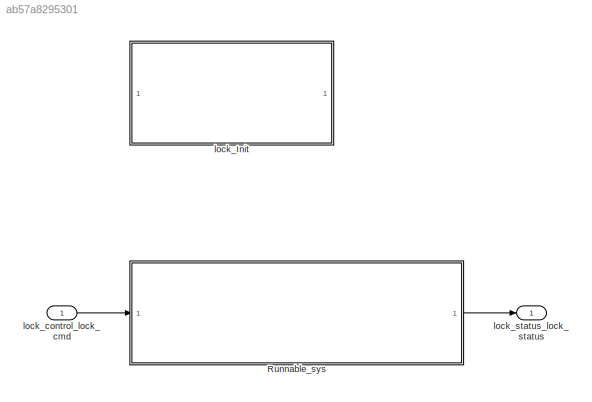
MODEL slx_ab57a8295301
KIND model
CONFIG AbsTol = auto
CONFIG EnableMultiTasking = off
CONFIG FixedStep = 0.02
CONFIG MaxStep = auto
CONFIG MinStep = auto
CONFIG RelTol = 1e-3
CONFIG SampleTimeConstraint = Unconstrained
CONFIG SolverName = FixedStepDiscrete
CONFIG StartTime = 0.0
CONFIG StopTime = 10.0
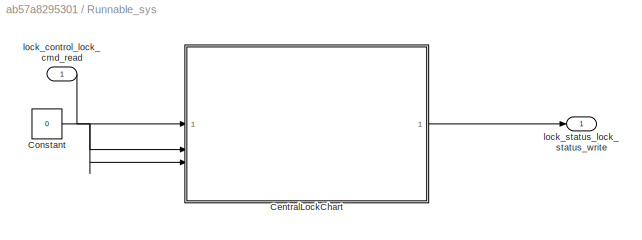
BLOCK [SubSystem] Runnable_sys
  SystemSampleTime = 0.02
  TreatAsAtomicUnit = on
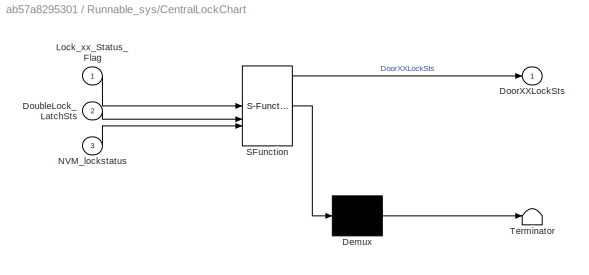
BLOCK [SubSystem] Runnable_sys/CentralLockChart
  ErrorFcn = Stateflow.Translate.translate
  PermitHierarchicalResolution = ExplicitOnly
  SFBlockType = Chart
  TreatAsAtomicUnit = on
BLOCK [Demux] Runnable_sys/CentralLockChart/ Demux 
  Outputs = 1
BLOCK [S-Function] Runnable_sys/CentralLockChart/ SFunction 
  EnableBusSupport = off
  FunctionName = sf_sfun
  PortCounts = [3 2]
  SFcnIsStateOwnerBlock = off
  SFunctionDeploymentMode = off
  Tag = Stateflow S-Function 36
BLOCK [Terminator] Runnable_sys/CentralLockChart/ Terminator 
BLOCK [Outport] Runnable_sys/CentralLockChart/DoorXXLockSts
BLOCK [Inport] Runnable_sys/CentralLockChart/DoubleLock_LatchSts
  Port = 2
BLOCK [Inport] Runnable_sys/CentralLockChart/Lock_xx_Status_Flag
BLOCK [Inport] Runnable_sys/CentralLockChart/NVM_lockstatus
  Port = 3
BLOCK [Constant] Runnable_sys/Constant
  OutDataTypeStr = uint8
  Value = 0
BLOCK [Inport] Runnable_sys/lock_control_lock_cmd_read
BLOCK [Outport] Runnable_sys/lock_status_lock_status_write
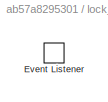
BLOCK [SubSystem] lock_Init
BLOCK [EventListener] lock_Init/Event Listener
  EventName = reset
BLOCK [Inport] lock_control_lock_cmd
  OutDataTypeStr = uint8
  PortDimensions = 1
  SamplingMode = Sample based
  SignalType = real
BLOCK [Outport] lock_status_lock_status
  OutDataTypeStr = uint8
  PortDimensions = 1
  SamplingMode = Sample based
  SignalType = real
LINE Runnable_sys/CentralLockChart:1 -> Runnable_sys/lock_status_lock_status_write:1
NET Runnable_sys/Constant:1 -> Runnable_sys/CentralLockChart:2, Runnable_sys/CentralLockChart:3
LINE Runnable_sys/lock_control_lock_cmd_read:1 -> Runnable_sys/CentralLockChart:1
LINE Runnable_sys:1 -> lock_status_lock_status:1
LINE lock_control_lock_cmd:1 -> Runnable_sys:1
note: NET lines group one-source signal fan-out (src -> all destinations, sorted); 1:1 wires keep LINE
CHART Runnable_sys/CentralLockChart states=4 transitions=9
  STATE_LABEL 'LockStsUkwn\nen:\nDoorXXLockSts = 0;%LockSts2_3.LockSts2_LockStsUkwn\n'
  STATE_LABEL 'Lock\nen:\nDoorXXLockSts =1;%LockSts2_3.LockSts2_Lockd'
  STATE_LABEL 'Unlock\nen:\nDoorXXLockSts = 2;%LockSts2_3.LockSts2_Unlckd'
  STATE_LABEL 'SafeLock\nen:\nDoorXXLockSts =3;%LockSts2_3.LockSts2_SafeLockd'
CHART  states=0 transitions=0
